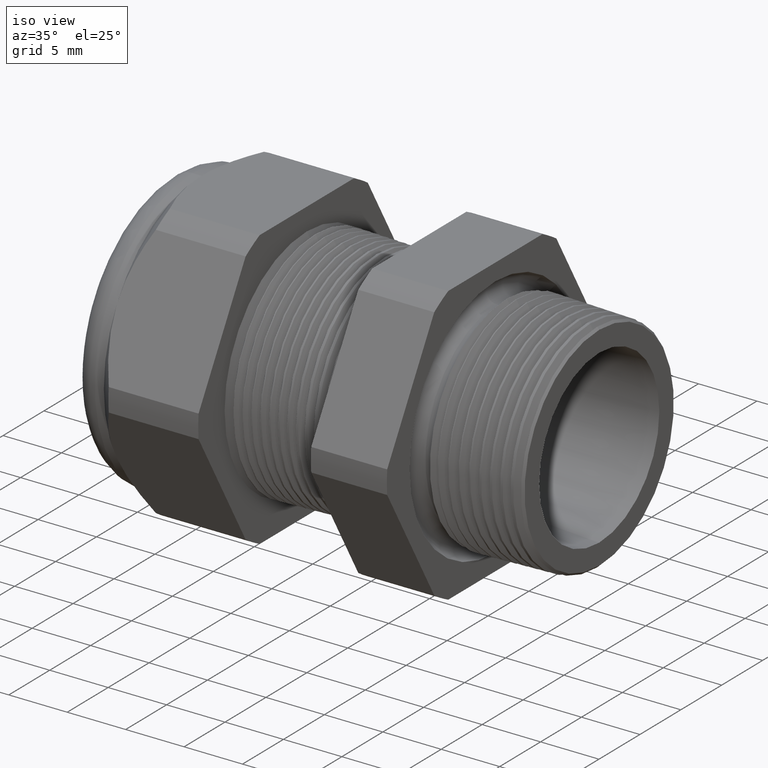
[diagram: clean part render]
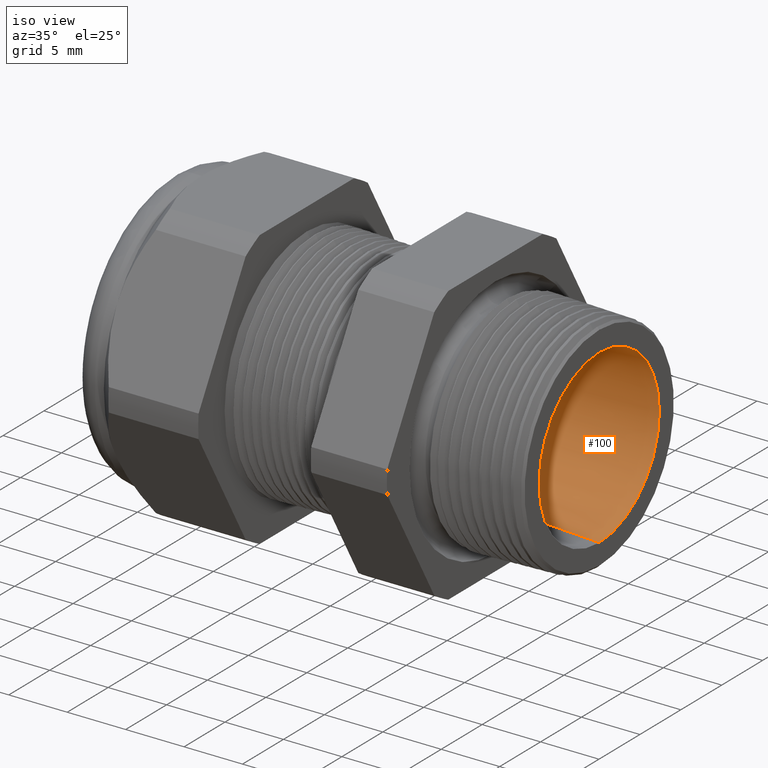
[diagram: same view with one face highlighted and labeled with its STEP entity id]
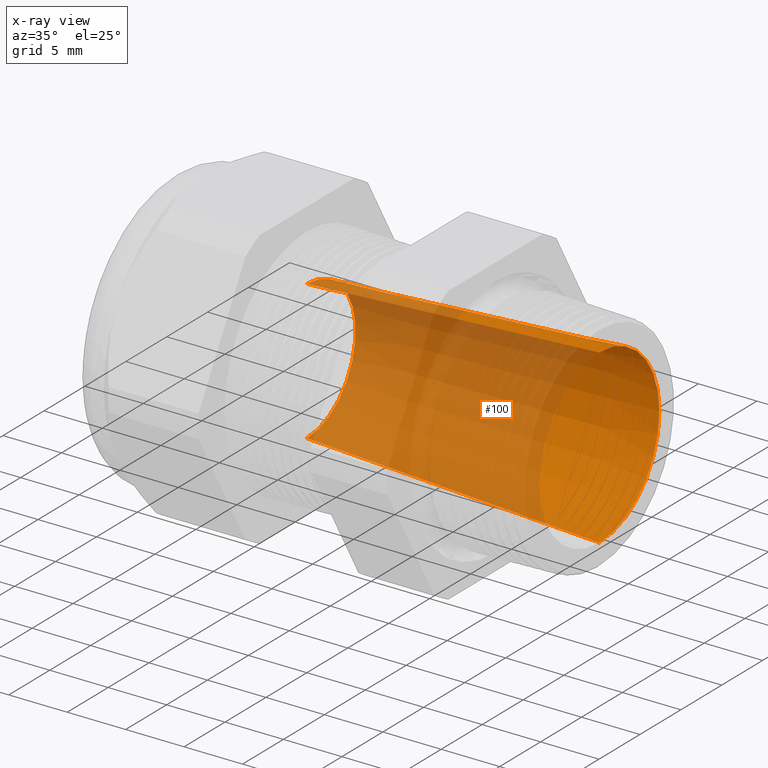
[diagram: x-ray of the same camera — body ghosted, the highlighted face saturated]
A machine part, iso view. The second image highlights one B-rep face of the part: STEP entity #100.
The next image is the same camera in x-ray: the body ghosted, the highlighted face saturated — about 67% of this face is hidden behind the body in this view.
In plain terms, the highlighted conical surface has half-angle 3.148 deg.
Its self-contained STEP definition (entity closure, byte-faithful):
#98 = EDGE_CURVE ( 'NONE', #1471, #1414, #1902, .T. ) ;
#100 = ADVANCED_FACE ( 'NONE', ( #1897 ), #1962, .F. ) ;
#101 = EDGE_LOOP ( 'NONE', ( #102, #103, #105, #106 ) ) ;
#102 = ORIENTED_EDGE ( 'NONE', *, *, #1413, .F. ) ;
#103 = ORIENTED_EDGE ( 'NONE', *, *, #104, .F. ) ;
#104 = EDGE_CURVE ( 'NONE', #1406, #1403, #1957, .T. ) ;
#105 = ORIENTED_EDGE ( 'NONE', *, *, #1473, .T. ) ;
#106 = ORIENTED_EDGE ( 'NONE', *, *, #98, .T. ) ;
#1403 = VERTEX_POINT ( 'NONE', #4182 ) ;
#1406 = VERTEX_POINT ( 'NONE', #4240 ) ;
#1413 = EDGE_CURVE ( 'NONE', #1403, #1414, #4234, .T. ) ;
#1414 = VERTEX_POINT ( 'NONE', #4224 ) ;
#1471 = VERTEX_POINT ( 'NONE', #4332 ) ;
#1473 = EDGE_CURVE ( 'NONE', #1406, #1471, #4393, .T. ) ;
#1897 = FACE_OUTER_BOUND ( 'NONE', #101, .T. ) ;
#1898 = DIRECTION ( 'NONE',  ( 0.0000000000000000000, 0.0000000000000000000, -1.000000000000000000 ) ) ;
#1899 = DIRECTION ( 'NONE',  ( 1.000000000000000000, 0.0000000000000000000, 0.0000000000000000000 ) ) ;
#1900 = CARTESIAN_POINT ( 'NONE',  ( 0.03999999999999998000, 0.0000000000000000000, 0.0000000000000000000 ) ) ;
#1901 = AXIS2_PLACEMENT_3D ( 'NONE', #1900, #1899, #1898 ) ;
#1902 = CIRCLE ( 'NONE', #1901, 0.2891955268946231900 ) ;
#1954 = DIRECTION ( 'NONE',  ( 0.0000000000000000000, 0.0000000000000000000, -1.000000000000000000 ) ) ;
#1955 = DIRECTION ( 'NONE',  ( 1.000000000000000000, 0.0000000000000000000, 0.0000000000000000000 ) ) ;
#1956 = AXIS2_PLACEMENT_3D ( 'NONE', #1963, #1955, #1954 ) ;
#1957 = CIRCLE ( 'NONE', #1956, 0.2350000000000000100 ) ;
#1958 = DIRECTION ( 'NONE',  ( 0.0000000000000000000, 0.0000000000000000000, -1.000000000000000000 ) ) ;
#1959 = DIRECTION ( 'NONE',  ( 1.000000000000000000, 0.0000000000000000000, 0.0000000000000000000 ) ) ;
#1960 = CARTESIAN_POINT ( 'NONE',  ( -0.9454330708661420300, 0.0000000000000000000, 0.0000000000000000000 ) ) ;
#1961 = AXIS2_PLACEMENT_3D ( 'NONE', #1960, #1959, #1958 ) ;
#1962 = CONICAL_SURFACE ( 'NONE', #1961, 0.2350000000000000100, 0.05494131151472637900 ) ;
#1963 = CARTESIAN_POINT ( 'NONE',  ( -0.9454330708661420300, 0.0000000000000000000, 0.0000000000000000000 ) ) ;
#4182 = CARTESIAN_POINT ( 'NONE',  ( -0.9454330708661420300, 3.209771870694303300E-017, 0.2350000000000000100 ) ) ;
#4224 = CARTESIAN_POINT ( 'NONE',  ( 0.03999999999999998000, 3.541623763392326200E-017, 0.2891955268946231900 ) ) ;
#4225 = DIRECTION ( 'NONE',  ( 0.9984911057575849300, 6.724985655221751600E-018, 0.05491367519111591700 ) ) ;
#4226 = VECTOR ( 'NONE', #4225, 39.37007874015748100 ) ;
#4227 = CARTESIAN_POINT ( 'NONE',  ( -0.9454330708661420300, 2.877919977996280400E-017, 0.2350000000000000100 ) ) ;
#4234 = LINE ( 'NONE', #4227, #4226 ) ;
#4240 = CARTESIAN_POINT ( 'NONE',  ( -0.9454330708661420300, 0.0000000000000000000, -0.2350000000000000100 ) ) ;
#4332 = CARTESIAN_POINT ( 'NONE',  ( 0.03999999999999998000, 0.0000000000000000000, -0.2891955268946231900 ) ) ;
#4390 = DIRECTION ( 'NONE',  ( 0.9984911057575849300, 0.0000000000000000000, -0.05491367519111591700 ) ) ;
#4391 = VECTOR ( 'NONE', #4390, 39.37007874015748100 ) ;
#4392 = CARTESIAN_POINT ( 'NONE',  ( -0.9454330708661420300, 0.0000000000000000000, -0.2350000000000000100 ) ) ;
#4393 = LINE ( 'NONE', #4392, #4391 ) ;